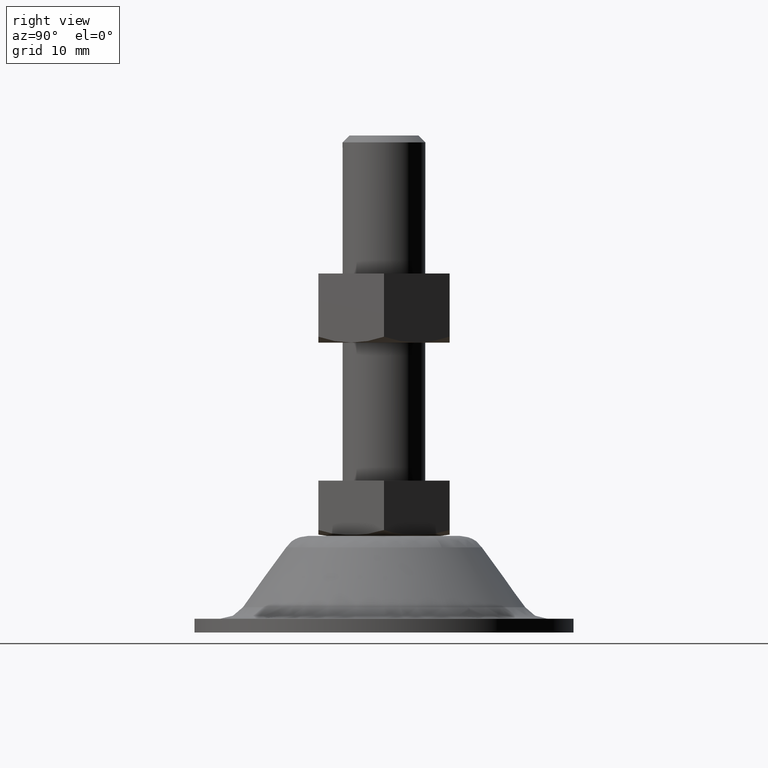
[diagram: clean part render]
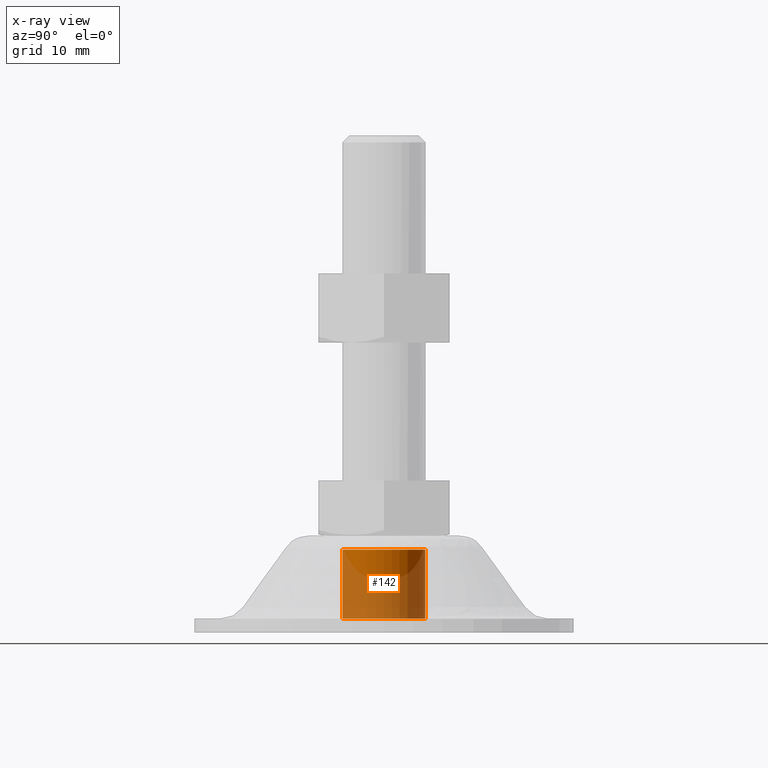
[diagram: x-ray — body ghosted, one internal face saturated and labeled with its STEP entity id]
A machine part, right view, then the same camera in x-ray: the body is ghosted and one INTERNAL B-rep face — a face not visible from any outside direction — is saturated and labeled: STEP entity #142.
In plain terms, the highlighted face is a freeform B-spline surface patch.
Its self-contained STEP definition (entity closure, byte-faithful):
#44=CARTESIAN_POINT('',(-0.470754574367073,-5.981504002398766,52.250000000000007));
#45=CARTESIAN_POINT('',(-6.452258576765839,-5.510749428031692,52.250000000000014));
#46=CARTESIAN_POINT('',(-5.981504002398766,0.470754574367073,52.250000000000007));
#47=CARTESIAN_POINT('',(-5.510749428031692,6.452258576765839,52.250000000000014));
#48=CARTESIAN_POINT('',(0.470754574367073,5.981504002398766,52.250000000000007));
#49=CARTESIAN_POINT('',(-0.470754574367073,-5.981504002398766,41.743749999999991));
#50=CARTESIAN_POINT('',(-6.452258576765839,-5.510749428031692,41.743749999999991));
#51=CARTESIAN_POINT('',(-5.981504002398766,0.470754574367073,41.743749999999991));
#52=CARTESIAN_POINT('',(-5.510749428031692,6.452258576765839,41.743749999999991));
#53=CARTESIAN_POINT('',(0.470754574367073,5.981504002398766,41.743749999999991));
#61=(BOUNDED_SURFACE()B_SPLINE_SURFACE(2,1,((#44,#49),(#45,#50),(#46,#51),(#47,#52),(#48,#53)),.UNSPECIFIED.,.F.,.F.,.U.)B_SPLINE_SURFACE_WITH_KNOTS((3,2,3),(2,2),(0.0,9.941125496954280,19.882250993908560),(0.0,10.506250000000019),.UNSPECIFIED.)GEOMETRIC_REPRESENTATION_ITEM()RATIONAL_B_SPLINE_SURFACE(((1.0,1.0),(0.707106781186548,0.707106781186548),(1.0,1.0),(0.707106781186548,0.707106781186548),(1.0,1.0)))REPRESENTATION_ITEM('')SURFACE());
#62=CARTESIAN_POINT('',(-6.0,0.0,42.0));
#63=VERTEX_POINT('',#62);
#64=CARTESIAN_POINT('',(-0.470754574447207,-5.981504002392461,42.0));
#65=VERTEX_POINT('',#64);
#66=CARTESIAN_POINT('',(-6.0,0.0,42.0));
#67=CARTESIAN_POINT('',(-6.0,-5.546342949800171,41.999999999999993));
#68=CARTESIAN_POINT('',(-0.470754574447208,-5.981504002392461,42.000000000000007));
#76=(BOUNDED_CURVE()B_SPLINE_CURVE(2,(#66,#67,#68),.UNSPECIFIED.,.F.,.U.)B_SPLINE_CURVE_WITH_KNOTS((3,3),(0.0,0.236331300628174),.UNSPECIFIED.)CURVE()GEOMETRIC_REPRESENTATION_ITEM()RATIONAL_B_SPLINE_CURVE((1.0,0.723120658610578,0.969723356162230))REPRESENTATION_ITEM(''));
#77=EDGE_CURVE('',#63,#65,#76,.T.);
#78=ORIENTED_EDGE('',*,*,#77,.F.);
#79=CARTESIAN_POINT('',(0.470754574447207,5.981504002392461,42.0));
#80=VERTEX_POINT('',#79);
#81=CARTESIAN_POINT('',(0.470754574447208,5.981504002392461,42.000000000000007));
#82=CARTESIAN_POINT('',(0.235740642126526,6.000000000000001,42.0));
#83=CARTESIAN_POINT('',(0.0,6.0,42.0));
#84=CARTESIAN_POINT('',(-6.0,6.0,42.000000000000007));
#85=CARTESIAN_POINT('',(-6.0,0.0,42.0));
#93=(BOUNDED_CURVE()B_SPLINE_CURVE(2,(#81,#82,#83,#84,#85),.UNSPECIFIED.,.F.,.U.)B_SPLINE_CURVE_WITH_KNOTS((3,2,3),(0.736331300628174,0.750000000000000,1.0),.UNSPECIFIED.)CURVE()GEOMETRIC_REPRESENTATION_ITEM()RATIONAL_B_SPLINE_CURVE((0.969723356162230,0.983986122575969,1.0,0.707106781186548,1.0))REPRESENTATION_ITEM(''));
#94=EDGE_CURVE('',#80,#63,#93,.T.);
#95=ORIENTED_EDGE('',*,*,#94,.F.);
#96=CARTESIAN_POINT('',(0.470754574447207,5.981504002392461,52.0));
#97=VERTEX_POINT('',#96);
#98=CARTESIAN_POINT('',(0.470754574447207,5.981504002392461,52.0));
#99=CARTESIAN_POINT('',(0.470754574447207,5.981504002392461,42.0));
#100=QUASI_UNIFORM_CURVE('',1,(#98,#99),.UNSPECIFIED.,.F.,.U.);
#101=EDGE_CURVE('',#97,#80,#100,.T.);
#102=ORIENTED_EDGE('',*,*,#101,.F.);
#103=CARTESIAN_POINT('',(-6.0,0.0,52.0));
#104=VERTEX_POINT('',#103);
#105=CARTESIAN_POINT('',(0.470754574447208,5.981504002392461,52.0));
#106=CARTESIAN_POINT('',(0.235740642126526,6.000000000000001,52.000000000000007));
#107=CARTESIAN_POINT('',(0.0,6.0,52.0));
#108=CARTESIAN_POINT('',(-6.0,6.0,52.000000000000007));
#109=CARTESIAN_POINT('',(-6.0,0.0,52.0));
#117=(BOUNDED_CURVE()B_SPLINE_CURVE(2,(#105,#106,#107,#108,#109),.UNSPECIFIED.,.F.,.U.)B_SPLINE_CURVE_WITH_KNOTS((3,2,3),(0.736331300628174,0.750000000000000,1.0),.UNSPECIFIED.)CURVE()GEOMETRIC_REPRESENTATION_ITEM()RATIONAL_B_SPLINE_CURVE((0.969723356162230,0.983986122575969,1.0,0.707106781186548,1.0))REPRESENTATION_ITEM(''));
#118=EDGE_CURVE('',#97,#104,#117,.T.);
#119=ORIENTED_EDGE('',*,*,#118,.T.);
#120=CARTESIAN_POINT('',(-0.470754574447207,-5.981504002392460,52.0));
#121=VERTEX_POINT('',#120);
#122=CARTESIAN_POINT('',(-6.0,0.0,52.0));
#123=CARTESIAN_POINT('',(-6.000000000000001,-5.546342949800173,52.0));
#124=CARTESIAN_POINT('',(-0.470754574447207,-5.981504002392460,52.0));
#132=(BOUNDED_CURVE()B_SPLINE_CURVE(2,(#122,#123,#124),.UNSPECIFIED.,.F.,.U.)B_SPLINE_CURVE_WITH_KNOTS((3,3),(0.0,0.236331300628174),.UNSPECIFIED.)CURVE()GEOMETRIC_REPRESENTATION_ITEM()RATIONAL_B_SPLINE_CURVE((1.0,0.723120658610578,0.969723356162230))REPRESENTATION_ITEM(''));
#133=EDGE_CURVE('',#104,#121,#132,.T.);
#134=ORIENTED_EDGE('',*,*,#133,.T.);
#135=CARTESIAN_POINT('',(-0.470754574447207,-5.981504002392460,52.0));
#136=CARTESIAN_POINT('',(-0.470754574447207,-5.981504002392461,42.0));
#137=QUASI_UNIFORM_CURVE('',1,(#135,#136),.UNSPECIFIED.,.F.,.U.);
#138=EDGE_CURVE('',#121,#65,#137,.T.);
#139=ORIENTED_EDGE('',*,*,#138,.T.);
#140=EDGE_LOOP('',(#78,#95,#102,#119,#134,#139));
#141=FACE_OUTER_BOUND('',#140,.T.);
#142=ADVANCED_FACE('',(#141),#61,.F.);